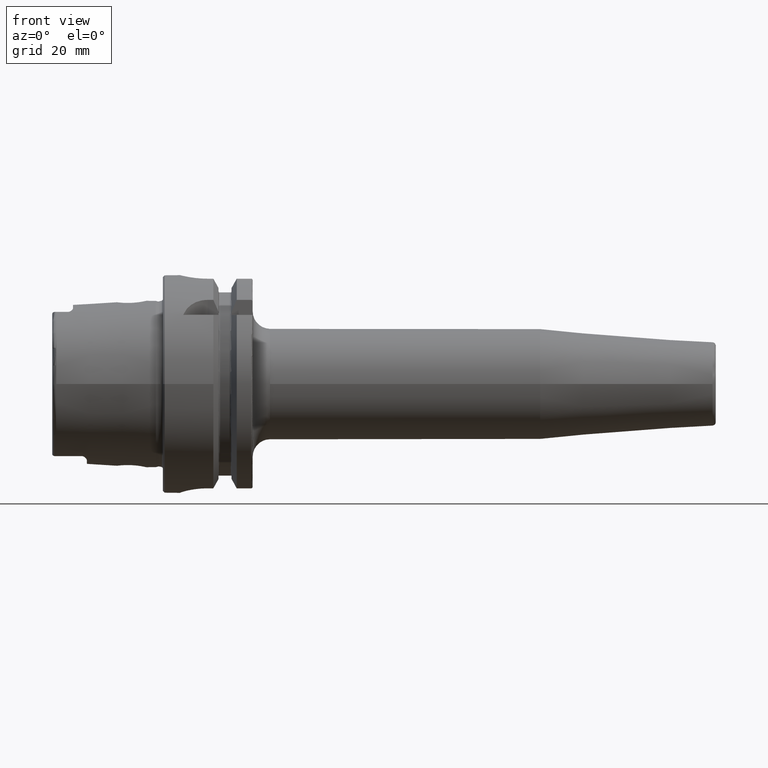
[diagram: clean part render]
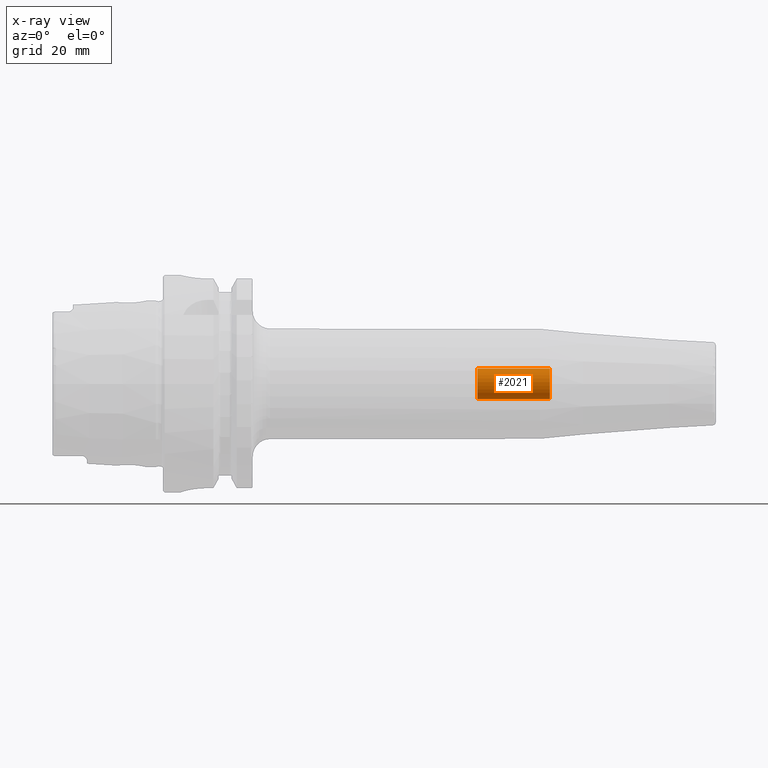
[diagram: x-ray — body ghosted, one internal face saturated and labeled with its STEP entity id]
A machine part, front view, then the same camera in x-ray: the body is ghosted and one INTERNAL B-rep face — a face not visible from any outside direction — is saturated and labeled: STEP entity #2021.
In plain terms, the highlighted cylindrical surface (bore or boss wall) has radius 4.4587 mm, axis along (1, 0, 0).
Its self-contained STEP definition (entity closure, byte-faithful):
#183=CYLINDRICAL_SURFACE('',#2190,4.458734);
#228=FACE_OUTER_BOUND('',#353,.T.);
#353=EDGE_LOOP('',(#1418,#1419,#1420,#1421));
#486=LINE('',#3129,#596);
#596=VECTOR('',#2510,4.458734);
#711=CIRCLE('',#2189,4.458734);
#712=CIRCLE('',#2191,4.458734);
#849=VERTEX_POINT('',#3123);
#850=VERTEX_POINT('',#3127);
#1067=EDGE_CURVE('',#849,#849,#711,.T.);
#1069=EDGE_CURVE('',#850,#850,#712,.T.);
#1070=EDGE_CURVE('',#850,#849,#486,.T.);
#1418=ORIENTED_EDGE('',*,*,#1069,.F.);
#1419=ORIENTED_EDGE('',*,*,#1070,.T.);
#1420=ORIENTED_EDGE('',*,*,#1067,.F.);
#1421=ORIENTED_EDGE('',*,*,#1070,.F.);
#2021=ADVANCED_FACE('',(#228),#183,.F.);
#2189=AXIS2_PLACEMENT_3D('',#3124,#2503,#2504);
#2190=AXIS2_PLACEMENT_3D('',#3126,#2506,#2507);
#2191=AXIS2_PLACEMENT_3D('',#3128,#2508,#2509);
#2503=DIRECTION('center_axis',(1.,0.,0.));
#2504=DIRECTION('ref_axis',(0.,0.,-1.));
#2506=DIRECTION('center_axis',(1.,0.,0.));
#2507=DIRECTION('ref_axis',(0.,0.,-1.));
#2508=DIRECTION('center_axis',(-1.,0.,0.));
#2509=DIRECTION('ref_axis',(0.,0.,-1.));
#2510=DIRECTION('',(-1.,0.,0.));
#3123=CARTESIAN_POINT('',(91.,-5.46037432134948E-16,4.458734));
#3124=CARTESIAN_POINT('Origin',(91.,0.,0.));
#3126=CARTESIAN_POINT('Origin',(125.5,0.,0.));
#3127=CARTESIAN_POINT('',(112.,5.46037432134947E-16,4.458734));
#3128=CARTESIAN_POINT('Origin',(112.,0.,0.));
#3129=CARTESIAN_POINT('',(125.5,-5.46037432134947E-16,4.458734));